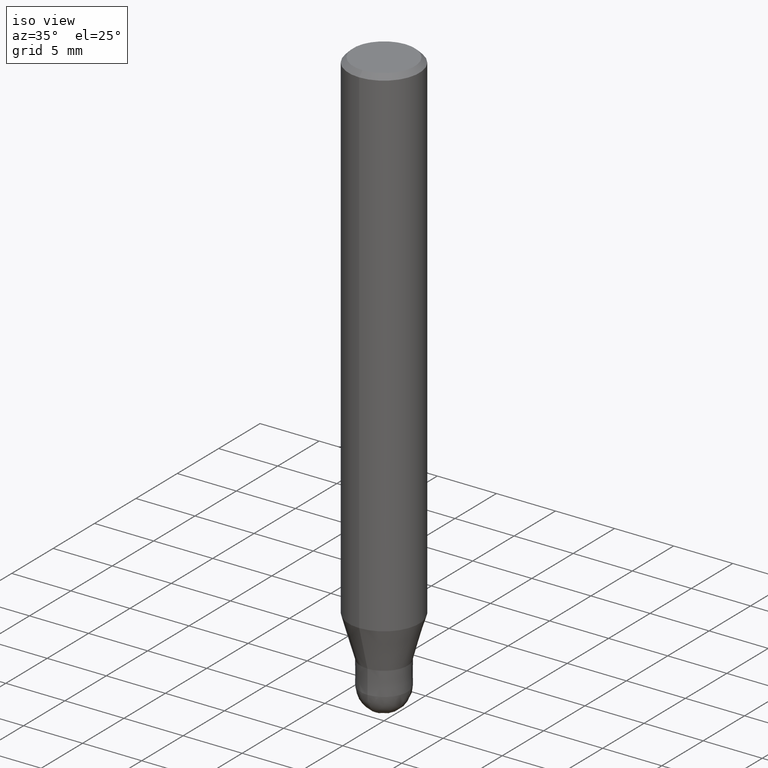
[diagram: clean part render]
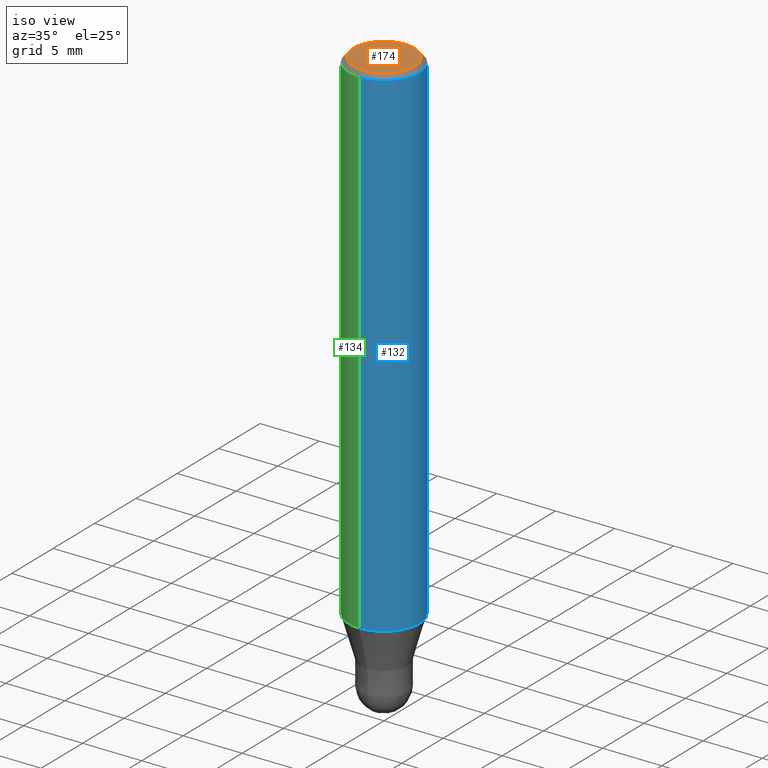
[diagram: same view with three faces highlighted in distinct colors, each labeled with its STEP entity id]
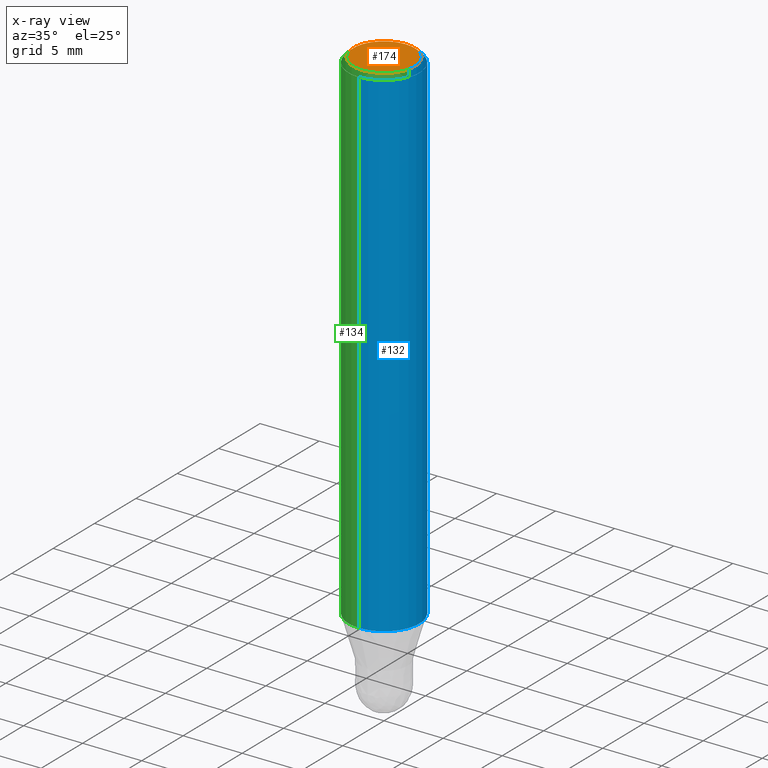
[diagram: x-ray of the same camera — body ghosted, the three highlighted faces saturated]
A machine part, iso view with three faces highlighted in distinct colors.
The next image is the same camera in x-ray (body ghosted, the three faces saturated) — at least one of them is partly hidden behind the body in this view.
Their STEP definitions:

[orange] entity #174 — the highlighted planar face has unit normal (-0, 0, 1).
#92=VERTEX_POINT('',#218);
#142=EDGE_CURVE('',#168,#92,#276,.T.);
#168=VERTEX_POINT('',#304);
#174=ADVANCED_FACE('',(#310),#311,.T.);
#190=EDGE_CURVE('',#92,#168,#330,.T.);
#218=CARTESIAN_POINT('',(0.0,2.6,0.0));
#276=CIRCLE('',#423,2.6);
#304=CARTESIAN_POINT('',(3.18397651993818E-016,-2.6,0.0));
#310=FACE_OUTER_BOUND('',#465,.T.);
#311=PLANE('',#466);
#330=CIRCLE('',#491,2.6);
#423=AXIS2_PLACEMENT_3D('',#572,#573,#574);
#465=EDGE_LOOP('',(#608,#609));
#466=AXIS2_PLACEMENT_3D('',#610,#611,#612);
#491=AXIS2_PLACEMENT_3D('',#647,#648,#649);
#572=CARTESIAN_POINT('',(0.0,0.0,0.0));
#573=DIRECTION('',(0.0,0.0,-1.0));
#574=DIRECTION('',(0.0,1.0,0.0));
#608=ORIENTED_EDGE('',*,*,#190,.F.);
#609=ORIENTED_EDGE('',*,*,#142,.F.);
#610=CARTESIAN_POINT('',(0.0,1.3,0.0));
#611=DIRECTION('',(-0.0,0.0,1.0));
#612=DIRECTION('',(0.0,-1.0,0.0));
#647=CARTESIAN_POINT('',(0.0,0.0,0.0));
#648=DIRECTION('',(0.0,0.0,-1.0));
#649=DIRECTION('',(0.0,1.0,0.0));

[blue] entity #132 — the highlighted cylindrical surface (partial cylindrical patch) has radius 3 mm, axis along (-0, -0, 1).
#100=EDGE_CURVE('',#120,#158,#227,.T.);
#114=VERTEX_POINT('',#242);
#120=VERTEX_POINT('',#248);
#126=VERTEX_POINT('',#256);
#132=ADVANCED_FACE('',(#263),#264,.T.);
#158=VERTEX_POINT('',#293);
#178=EDGE_CURVE('',#120,#114,#316,.T.);
#180=EDGE_CURVE('',#126,#114,#318,.T.);
#186=EDGE_CURVE('',#158,#126,#325,.T.);
#227=LINE('',#365,#366);
#242=CARTESIAN_POINT('',(3.67381906146713E-016,-3.0,-0.399999999999999));
#248=CARTESIAN_POINT('',(0.0,3.0,-0.399999999999999));
#256=CARTESIAN_POINT('',(3.67381906146713E-016,-3.0,-42.513));
#263=FACE_OUTER_BOUND('',#409,.T.);
#264=CYLINDRICAL_SURFACE('',#410,3.0);
#293=CARTESIAN_POINT('',(0.0,3.0,-42.513));
#316=CIRCLE('',#472,3.0);
#318=LINE('',#475,#476);
#325=CIRCLE('',#485,3.0);
#365=CARTESIAN_POINT('',(-3.67381906146713E-016,3.0,-21.4565));
#366=VECTOR('',#512,1.0);
#409=EDGE_LOOP('',(#549,#550,#551,#552));
#410=AXIS2_PLACEMENT_3D('',#553,#554,#555);
#472=AXIS2_PLACEMENT_3D('',#621,#622,#623);
#475=CARTESIAN_POINT('',(3.67381906146713E-016,-3.0,-21.4565));
#476=VECTOR('',#624,1.0);
#485=AXIS2_PLACEMENT_3D('',#636,#637,#638);
#512=DIRECTION('',(0.0,0.0,-1.0));
#549=ORIENTED_EDGE('',*,*,#100,.F.);
#550=ORIENTED_EDGE('',*,*,#178,.T.);
#551=ORIENTED_EDGE('',*,*,#180,.F.);
#552=ORIENTED_EDGE('',*,*,#186,.F.);
#553=CARTESIAN_POINT('',(0.0,0.0,-21.4565));
#554=DIRECTION('',(-0.0,-0.0,1.0));
#555=DIRECTION('',(0.0,1.0,0.0));
#621=CARTESIAN_POINT('',(0.0,0.0,-0.399999999999999));
#622=DIRECTION('',(0.0,0.0,-1.0));
#623=DIRECTION('',(0.0,1.0,0.0));
#624=DIRECTION('',(-0.0,-0.0,1.0));
#636=CARTESIAN_POINT('',(0.0,0.0,-42.513));
#637=DIRECTION('',(0.0,0.0,-1.0));
#638=DIRECTION('',(0.0,1.0,0.0));

[green] entity #134 — the highlighted cylindrical surface (partial cylindrical patch) has radius 3 mm, axis along (-0, -0, 1).
#100=EDGE_CURVE('',#120,#158,#227,.T.);
#104=EDGE_CURVE('',#126,#158,#231,.T.);
#114=VERTEX_POINT('',#242);
#120=VERTEX_POINT('',#248);
#126=VERTEX_POINT('',#256);
#134=ADVANCED_FACE('',(#266),#267,.T.);
#150=EDGE_CURVE('',#114,#120,#284,.T.);
#158=VERTEX_POINT('',#293);
#180=EDGE_CURVE('',#126,#114,#318,.T.);
#227=LINE('',#365,#366);
#231=CIRCLE('',#372,3.0);
#242=CARTESIAN_POINT('',(3.67381906146713E-016,-3.0,-0.399999999999999));
#248=CARTESIAN_POINT('',(0.0,3.0,-0.399999999999999));
#256=CARTESIAN_POINT('',(3.67381906146713E-016,-3.0,-42.513));
#266=FACE_OUTER_BOUND('',#412,.T.);
#267=CYLINDRICAL_SURFACE('',#413,3.0);
#284=CIRCLE('',#432,3.0);
#293=CARTESIAN_POINT('',(0.0,3.0,-42.513));
#318=LINE('',#475,#476);
#365=CARTESIAN_POINT('',(-3.67381906146713E-016,3.0,-21.4565));
#366=VECTOR('',#512,1.0);
#372=AXIS2_PLACEMENT_3D('',#516,#517,#518);
#412=EDGE_LOOP('',(#557,#558,#559,#560));
#413=AXIS2_PLACEMENT_3D('',#561,#562,#563);
#432=AXIS2_PLACEMENT_3D('',#579,#580,#581);
#475=CARTESIAN_POINT('',(3.67381906146713E-016,-3.0,-21.4565));
#476=VECTOR('',#624,1.0);
#512=DIRECTION('',(0.0,0.0,-1.0));
#516=CARTESIAN_POINT('',(0.0,0.0,-42.513));
#517=DIRECTION('',(0.0,0.0,-1.0));
#518=DIRECTION('',(0.0,1.0,0.0));
#557=ORIENTED_EDGE('',*,*,#100,.T.);
#558=ORIENTED_EDGE('',*,*,#104,.F.);
#559=ORIENTED_EDGE('',*,*,#180,.T.);
#560=ORIENTED_EDGE('',*,*,#150,.T.);
#561=CARTESIAN_POINT('',(0.0,0.0,-21.4565));
#562=DIRECTION('',(-0.0,-0.0,1.0));
#563=DIRECTION('',(0.0,1.0,0.0));
#579=CARTESIAN_POINT('',(0.0,0.0,-0.399999999999999));
#580=DIRECTION('',(0.0,0.0,-1.0));
#581=DIRECTION('',(0.0,1.0,0.0));
#624=DIRECTION('',(-0.0,-0.0,1.0));